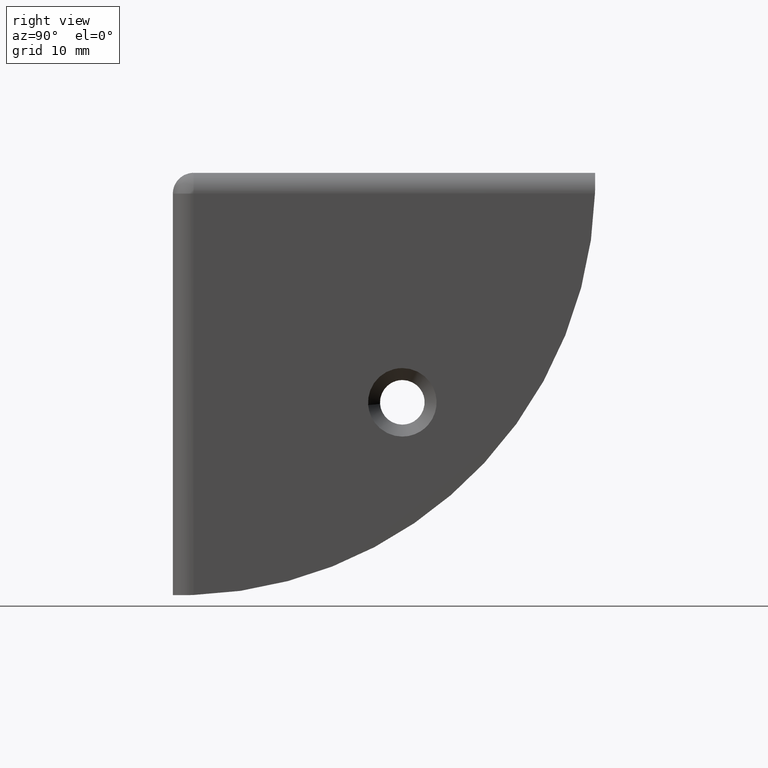
[diagram: clean part render]
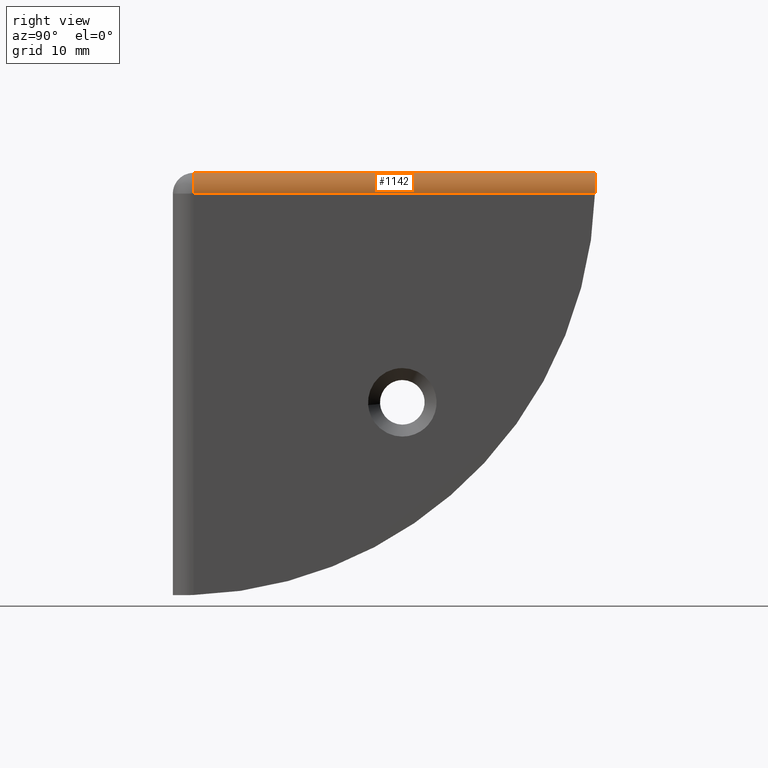
[diagram: same view with one face highlighted and labeled with its STEP entity id]
A machine part, right view. The second image highlights one B-rep face of the part: STEP entity #1142.
In plain terms, the highlighted face is a freeform B-spline surface patch.
Its self-contained STEP definition (entity closure, byte-faithful):
#1060=CARTESIAN_POINT('',(-2.668060065600474,54.259999999999998,52.999109044936453));
#1061=CARTESIAN_POINT('',(-2.668060065600474,1.308500000000046,52.999109044936453));
#1062=CARTESIAN_POINT('',(0.168369730344701,54.259999999999998,53.073383573109581));
#1063=CARTESIAN_POINT('',(0.168369730344701,1.308500000000046,53.073383573109581));
#1064=CARTESIAN_POINT('',(-0.004849524103143,54.259999999999998,50.241273797209388));
#1065=CARTESIAN_POINT('',(-0.004849524103143,1.308500000000046,50.241273797209388));
#1073=(BOUNDED_SURFACE()B_SPLINE_SURFACE(1,2,((#1060,#1062,#1064),(#1061,#1063,#1065)),.UNSPECIFIED.,.F.,.F.,.U.)B_SPLINE_SURFACE_WITH_KNOTS((2,2),(3,3),(0.0,52.951499999999953),(0.0,4.576109521275057),.UNSPECIFIED.)GEOMETRIC_REPRESENTATION_ITEM()RATIONAL_B_SPLINE_SURFACE(((1.0,0.675590207615660,1.0),(1.0,0.675590207615660,1.0)))REPRESENTATION_ITEM('')SURFACE());
#1074=CARTESIAN_POINT('',(-2.600000000000000,52.978906015927301,53.0));
#1075=VERTEX_POINT('',#1074);
#1076=CARTESIAN_POINT('',(-1.600000000000000,53.0,52.799999999999997));
#1077=VERTEX_POINT('',#1076);
#1078=CARTESIAN_POINT('',(-2.600000000000000,52.978906015927301,53.0));
#1079=CARTESIAN_POINT('',(-2.426704795621222,52.984229281617957,53.000000000000007));
#1080=CARTESIAN_POINT('',(-2.256819033589501,52.988581288369772,52.982850351176580));
#1081=CARTESIAN_POINT('',(-1.923483026140598,52.995549077752500,52.916190353760918));
#1082=CARTESIAN_POINT('',(-1.760032693828029,52.998163600426899,52.866680289765632));
#1083=CARTESIAN_POINT('',(-1.600000000000000,53.0,52.799999999999997));
#1084=B_SPLINE_CURVE_WITH_KNOTS('',3,(#1078,#1079,#1080,#1081,#1082,#1083),.UNSPECIFIED.,.F.,.U.,(4,2,4),(0.0,0.500000000000000,1.0),.UNSPECIFIED.);
#1085=EDGE_CURVE('',#1075,#1077,#1084,.T.);
#1086=ORIENTED_EDGE('',*,*,#1085,.F.);
#1087=CARTESIAN_POINT('',(-2.600000000000000,2.600000000000045,53.0));
#1088=VERTEX_POINT('',#1087);
#1089=CARTESIAN_POINT('',(-2.600000000000000,2.600000000000045,53.0));
#1090=CARTESIAN_POINT('',(-2.600000000000000,52.978906015927301,53.0));
#1091=QUASI_UNIFORM_CURVE('',1,(#1089,#1090),.UNSPECIFIED.,.F.,.U.);
#1092=EDGE_CURVE('',#1088,#1075,#1091,.T.);
#1093=ORIENTED_EDGE('',*,*,#1092,.F.);
#1094=CARTESIAN_POINT('',(0.0,2.600000000000045,50.399999999999999));
#1095=VERTEX_POINT('',#1094);
#1096=CARTESIAN_POINT('',(-2.600000000000000,2.600000000000045,53.0));
#1097=CARTESIAN_POINT('',(0.0,2.600000000000045,53.0));
#1098=CARTESIAN_POINT('',(0.0,2.600000000000045,50.399999999999999));
#1106=(BOUNDED_CURVE()B_SPLINE_CURVE(2,(#1096,#1097,#1098),.UNSPECIFIED.,.F.,.U.)CURVE()GEOMETRIC_REPRESENTATION_ITEM()QUASI_UNIFORM_CURVE()RATIONAL_B_SPLINE_CURVE((1.0,0.707106781186548,1.0))REPRESENTATION_ITEM(''));
#1107=EDGE_CURVE('',#1088,#1095,#1106,.T.);
#1108=ORIENTED_EDGE('',*,*,#1107,.T.);
#1109=CARTESIAN_POINT('',(0.0,52.978906015927301,50.399999999999999));
#1110=VERTEX_POINT('',#1109);
#1111=CARTESIAN_POINT('',(0.0,52.978906015927301,50.399999999999999));
#1112=CARTESIAN_POINT('',(0.0,2.600000000000045,50.399999999999999));
#1113=QUASI_UNIFORM_CURVE('',1,(#1111,#1112),.UNSPECIFIED.,.F.,.U.);
#1114=EDGE_CURVE('',#1110,#1095,#1113,.T.);
#1115=ORIENTED_EDGE('',*,*,#1114,.F.);
#1116=CARTESIAN_POINT('',(-0.200000000000089,53.0,51.399999999999999));
#1117=VERTEX_POINT('',#1116);
#1118=CARTESIAN_POINT('',(-0.200000000000050,53.0,51.399999999999999));
#1119=CARTESIAN_POINT('',(-0.133319707079070,52.998163879363439,51.239967296989647));
#1120=CARTESIAN_POINT('',(-0.083809646031368,52.995549077738929,51.076516973089007));
#1121=CARTESIAN_POINT('',(-0.017149648715512,52.988581288350332,50.743180965602562));
#1122=CARTESIAN_POINT('',(2.020174E-016,52.984229281600541,50.573295203812691));
#1123=CARTESIAN_POINT('',(2.073903E-016,52.978906015927301,50.399999999999999));
#1124=B_SPLINE_CURVE_WITH_KNOTS('',3,(#1118,#1119,#1120,#1121,#1122,#1123),.UNSPECIFIED.,.F.,.U.,(4,2,4),(0.0,0.500000000000000,1.0),.UNSPECIFIED.);
#1125=EDGE_CURVE('',#1117,#1110,#1124,.T.);
#1126=ORIENTED_EDGE('',*,*,#1125,.F.);
#1127=CARTESIAN_POINT('',(-1.600000000000001,53.0,52.799999999999997));
#1128=CARTESIAN_POINT('',(-0.611764705882372,53.0,52.388235294117656));
#1129=CARTESIAN_POINT('',(-0.200000000000014,53.0,51.400000000000027));
#1137=(BOUNDED_CURVE()B_SPLINE_CURVE(2,(#1127,#1128,#1129),.UNSPECIFIED.,.F.,.U.)CURVE()GEOMETRIC_REPRESENTATION_ITEM()QUASI_UNIFORM_CURVE()RATIONAL_B_SPLINE_CURVE((1.0,0.924678098474718,1.0))REPRESENTATION_ITEM(''));
#1138=EDGE_CURVE('',#1077,#1117,#1137,.T.);
#1139=ORIENTED_EDGE('',*,*,#1138,.F.);
#1140=EDGE_LOOP('',(#1086,#1093,#1108,#1115,#1126,#1139));
#1141=FACE_OUTER_BOUND('',#1140,.T.);
#1142=ADVANCED_FACE('',(#1141),#1073,.T.);